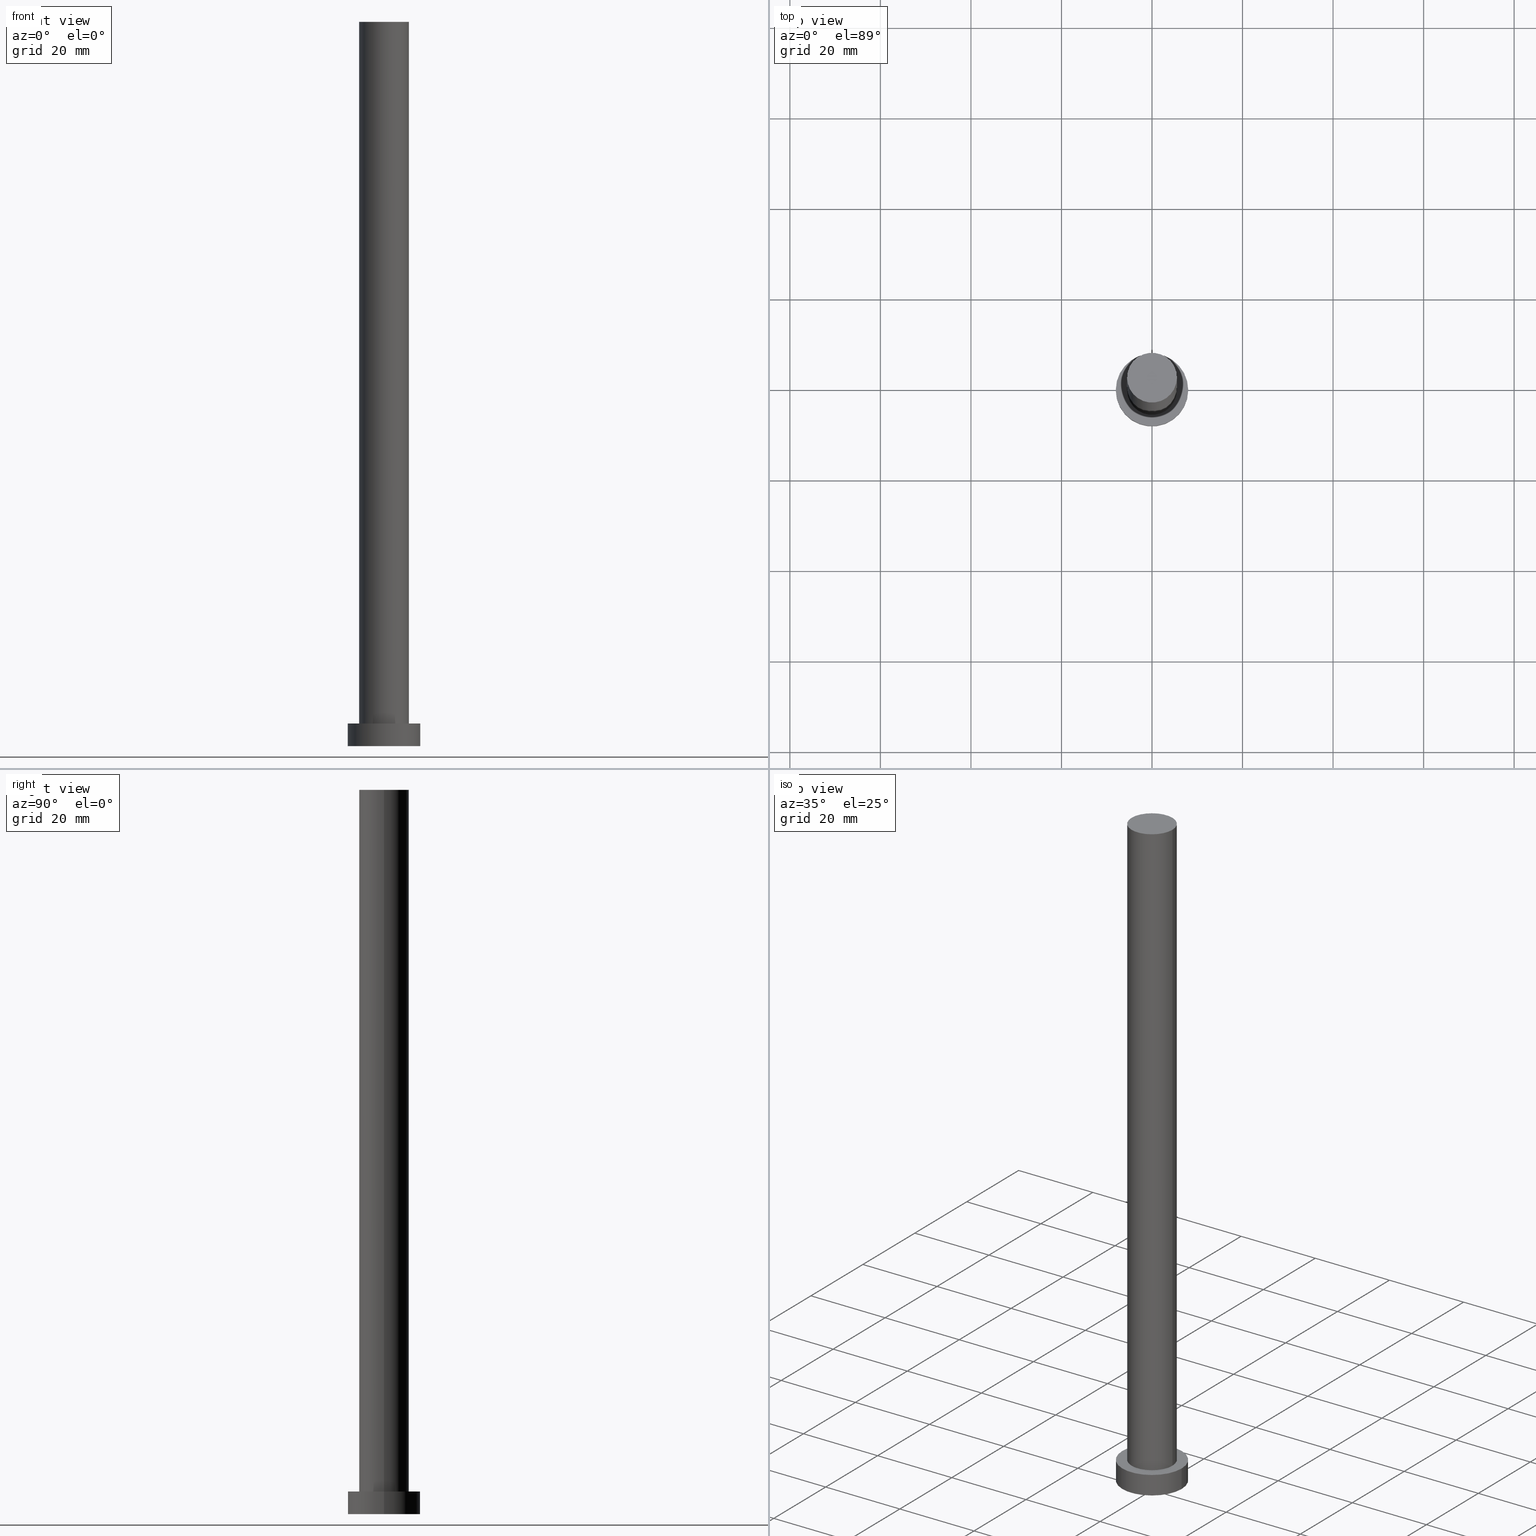
[diagram: canonical four-view strip — front | top / right | iso, engineering-drawing reading convention]
A machine part, canonical four-view strip (front | top / right | iso — engineering-drawing reading convention). The complete STEP part file that produces these views, byte-faithful:
ISO-10303-21;
HEADER;
FILE_DESCRIPTION (( 'STEP AP203' ),
    '1' );
FILE_NAME ('cc7d.STEP',
    '2023-02-12T10:57:39',
    ( '' ),
    ( '' ),
    'SwSTEP 2.0',
    'SolidWorks 2019',
    '' );
FILE_SCHEMA (( 'CONFIG_CONTROL_DESIGN' ));
ENDSEC;

DATA;
#1 = COORDINATED_UNIVERSAL_TIME_OFFSET ( 1, 0, .AHEAD. ) ;
#2 = FACE_OUTER_BOUND ( 'NONE', #150, .T. ) ;
#3 = CARTESIAN_POINT ( 'NONE',  ( 0.000000000000000000, 0.000000000000000000, 0.000000000000000000 ) ) ;
#4 = CARTESIAN_POINT ( 'NONE',  ( 0.000000000000000000, 0.000000000000000000, 0.000000000000000000 ) ) ;
#5 = CARTESIAN_POINT ( 'NONE',  ( -8.000000000000000000, 0.000000000000000000, 5.000000000000000000 ) ) ;
#6 = PERSON_AND_ORGANIZATION_ROLE ( 'design_owner' ) ;
#7 = LINE ( 'NONE', #164, #197 ) ;
#8 = CALENDAR_DATE ( 2023, 12, 2 ) ;
#9 = AXIS2_PLACEMENT_3D ( 'NONE', #4, #240, #99 ) ;
#10 = ADVANCED_FACE ( 'NONE', ( #123 ), #98, .T. ) ;
#11 = DATE_AND_TIME ( #72, #146 ) ;
#12 = ORIENTED_EDGE ( 'NONE', *, *, #176, .T. ) ;
#13 = APPROVAL_DATE_TIME ( #11, #188 ) ;
#14 = CARTESIAN_POINT ( 'NONE',  ( 0.000000000000000000, 0.000000000000000000, 0.000000000000000000 ) ) ;
#15 = ORIENTED_EDGE ( 'NONE', *, *, #50, .F. ) ;
#16 = DIRECTION ( 'NONE',  ( -0.000000000000000000, -0.000000000000000000, -1.000000000000000000 ) ) ;
#17 = VERTEX_POINT ( 'NONE', #5 ) ;
#18 = EDGE_CURVE ( 'NONE', #116, #163, #47, .T. ) ;
#19 = LINE ( 'NONE', #195, #94 ) ;
#20 = APPROVAL_PERSON_ORGANIZATION ( #28, #148, #119 ) ;
#21 = ORIENTED_EDGE ( 'NONE', *, *, #239, .T. ) ;
#22 = DIRECTION ( 'NONE',  ( 0.000000000000000000, 0.000000000000000000, 1.000000000000000000 ) ) ;
#23 = COORDINATED_UNIVERSAL_TIME_OFFSET ( 1, 0, .AHEAD. ) ;
#24 = CLOSED_SHELL ( 'NONE', ( #10, #128, #155, #66, #108, #90, #167 ) ) ;
#25 = APPROVAL ( #82, 'NEUR�EN�' ) ;
#26 = DIRECTION ( 'NONE',  ( 0.000000000000000000, 0.000000000000000000, 1.000000000000000000 ) ) ;
#27 = PERSON_AND_ORGANIZATION ( #187, #168 ) ;
#28 = PERSON_AND_ORGANIZATION ( #187, #168 ) ;
#29 = PERSON_AND_ORGANIZATION ( #187, #168 ) ;
#30 = ORIENTED_EDGE ( 'NONE', *, *, #134, .T. ) ;
#31 = ORIENTED_EDGE ( 'NONE', *, *, #37, .F. ) ;
#32 = AXIS2_PLACEMENT_3D ( 'NONE', #46, #127, #243 ) ;
#33 = PRODUCT_DEFINITION_FORMATION_WITH_SPECIFIED_SOURCE ( 'LIBOVOLN�', '', #122, .NOT_KNOWN. ) ;
#34 = CC_DESIGN_DATE_AND_TIME_ASSIGNMENT ( #85, #228, ( #191 ) ) ;
#35 = DIRECTION ( 'NONE',  ( 1.000000000000000000, 0.000000000000000000, 0.000000000000000000 ) ) ;
#36 = AXIS2_PLACEMENT_3D ( 'NONE', #226, #142, #158 ) ;
#37 = EDGE_CURVE ( 'NONE', #17, #71, #112, .T. ) ;
#38 = CARTESIAN_POINT ( 'NONE',  ( 8.000000000000000000, 9.797174393178825657E-16, 0.000000000000000000 ) ) ;
#39 = DIRECTION ( 'NONE',  ( -0.000000000000000000, -0.000000000000000000, -1.000000000000000000 ) ) ;
#40 = CARTESIAN_POINT ( 'NONE',  ( 0.000000000000000000, 0.000000000000000000, 5.000000000000000000 ) ) ;
#41 = APPLICATION_PROTOCOL_DEFINITION ( 'international standard', 'config_control_design', 1994, #166 ) ;
#42 = CARTESIAN_POINT ( 'NONE',  ( -5.500000000000000000, 0.000000000000000000, 160.0000000000000000 ) ) ;
#43 = DATE_AND_TIME ( #8, #57 ) ;
#44 = EDGE_CURVE ( 'NONE', #153, #234, #68, .T. ) ;
#45 = CALENDAR_DATE ( 2023, 12, 2 ) ;
#46 = CARTESIAN_POINT ( 'NONE',  ( 0.000000000000000000, 0.000000000000000000, 160.0000000000000000 ) ) ;
#47 = CIRCLE ( 'NONE', #143, 8.000000000000000000 ) ;
#48 = VERTEX_POINT ( 'NONE', #206 ) ;
#49 = AXIS2_PLACEMENT_3D ( 'NONE', #103, #39, #179 ) ;
#50 = EDGE_CURVE ( 'NONE', #234, #48, #241, .T. ) ;
#51 = DIRECTION ( 'NONE',  ( 1.000000000000000000, 0.000000000000000000, -0.000000000000000000 ) ) ;
#52 = CARTESIAN_POINT ( 'NONE',  ( 0.000000000000000000, 0.000000000000000000, 160.0000000000000000 ) ) ;
#53 = ORIENTED_EDGE ( 'NONE', *, *, #37, .T. ) ;
#54 = EDGE_LOOP ( 'NONE', ( #129, #110 ) ) ;
#55 = CYLINDRICAL_SURFACE ( 'NONE', #64, 5.500000000000000000 ) ;
#56 = APPROVAL_STATUS ( 'not_yet_approved' ) ;
#57 = LOCAL_TIME ( 11, 57, 39.00000000000000000, #245 ) ;
#58 = APPROVAL_DATE_TIME ( #43, #25 ) ;
#59 = EDGE_CURVE ( 'NONE', #17, #116, #7, .T. ) ;
#60 = CARTESIAN_POINT ( 'NONE',  ( 0.000000000000000000, 0.000000000000000000, 0.000000000000000000 ) ) ;
#61 = EDGE_CURVE ( 'NONE', #71, #163, #204, .T. ) ;
#62 = AXIS2_PLACEMENT_3D ( 'NONE', #40, #145, #77 ) ;
#63 = CC_DESIGN_APPROVAL ( #188, ( #191 ) ) ;
#64 = AXIS2_PLACEMENT_3D ( 'NONE', #52, #156, #253 ) ;
#65 = CIRCLE ( 'NONE', #196, 5.500000000000000000 ) ;
#66 = ADVANCED_FACE ( 'NONE', ( #106, #235 ), #154, .T. ) ;
#67 = PERSON_AND_ORGANIZATION_ROLE ( 'classification_officer' ) ;
#68 = CIRCLE ( 'NONE', #32, 5.500000000000000000 ) ;
#69 = FACE_OUTER_BOUND ( 'NONE', #232, .T. ) ;
#70 = DIRECTION ( 'NONE',  ( 0.000000000000000000, 0.000000000000000000, 1.000000000000000000 ) ) ;
#71 = VERTEX_POINT ( 'NONE', #193 ) ;
#72 = CALENDAR_DATE ( 2023, 12, 2 ) ;
#73 = DESIGN_CONTEXT ( 'detailed design', #201, 'design' ) ;
#74 = AXIS2_PLACEMENT_3D ( 'NONE', #3, #162, #242 ) ;
#75 = ADVANCED_BREP_SHAPE_REPRESENTATION ( 'cc7d', ( #203, #9 ), #136 ) ;
#76 = CYLINDRICAL_SURFACE ( 'NONE', #107, 8.000000000000000000 ) ;
#77 = DIRECTION ( 'NONE',  ( 1.000000000000000000, 0.000000000000000000, 0.000000000000000000 ) ) ;
#78 = CC_DESIGN_PERSON_AND_ORGANIZATION_ASSIGNMENT ( #86, #130, ( #33 ) ) ;
#79 = DIRECTION ( 'NONE',  ( 1.000000000000000000, 0.000000000000000000, 0.000000000000000000 ) ) ;
#80 = APPROVAL_DATE_TIME ( #175, #148 ) ;
#81 = PRODUCT_DEFINITION_SHAPE ( 'NONE', 'NONE',  #210 ) ;
#82 = APPROVAL_STATUS ( 'not_yet_approved' ) ;
#83 = AXIS2_PLACEMENT_3D ( 'NONE', #135, #141, #222 ) ;
#84 = AXIS2_PLACEMENT_3D ( 'NONE', #111, #113, #172 ) ;
#85 = DATE_AND_TIME ( #185, #220 ) ;
#86 = PERSON_AND_ORGANIZATION ( #187, #168 ) ;
#87 = ORIENTED_EDGE ( 'NONE', *, *, #149, .T. ) ;
#88 = PERSON_AND_ORGANIZATION_ROLE ( 'creator' ) ;
#89 = ORIENTED_EDGE ( 'NONE', *, *, #18, .T. ) ;
#90 = ADVANCED_FACE ( 'NONE', ( #252 ), #55, .T. ) ;
#91 = ORIENTED_EDGE ( 'NONE', *, *, #61, .F. ) ;
#92 = APPROVAL_ROLE ( '' ) ;
#93 = CARTESIAN_POINT ( 'NONE',  ( 0.000000000000000000, 0.000000000000000000, 5.000000000000000000 ) ) ;
#94 = VECTOR ( 'NONE', #174, 1000.000000000000000 ) ;
#95 = CYLINDRICAL_SURFACE ( 'NONE', #184, 8.000000000000000000 ) ;
#96 = CARTESIAN_POINT ( 'NONE',  ( 0.000000000000000000, 0.000000000000000000, 160.0000000000000000 ) ) ;
#97 = CALENDAR_DATE ( 2023, 12, 2 ) ;
#98 = CYLINDRICAL_SURFACE ( 'NONE', #49, 5.500000000000000000 ) ;
#99 = DIRECTION ( 'NONE',  ( 1.000000000000000000, 0.000000000000000000, 0.000000000000000000 ) ) ;
#100 = CC_DESIGN_PERSON_AND_ORGANIZATION_ASSIGNMENT ( #125, #181, ( #210 ) ) ;
#101 = ORIENTED_EDGE ( 'NONE', *, *, #50, .T. ) ;
#102 = PERSON_AND_ORGANIZATION ( #187, #168 ) ;
#103 = CARTESIAN_POINT ( 'NONE',  ( 0.000000000000000000, 0.000000000000000000, 160.0000000000000000 ) ) ;
#104 = CARTESIAN_POINT ( 'NONE',  ( 8.000000000000000000, 9.797174393178825657E-16, 5.000000000000000000 ) ) ;
#105 = COORDINATED_UNIVERSAL_TIME_OFFSET ( 1, 0, .AHEAD. ) ;
#106 = FACE_BOUND ( 'NONE', #186, .T. ) ;
#107 = AXIS2_PLACEMENT_3D ( 'NONE', #238, #16, #138 ) ;
#108 = ADVANCED_FACE ( 'NONE', ( #194 ), #190, .F. ) ;
#109 = LOCAL_TIME ( 11, 57, 39.00000000000000000, #199 ) ;
#110 = ORIENTED_EDGE ( 'NONE', *, *, #244, .F. ) ;
#111 = CARTESIAN_POINT ( 'NONE',  ( 0.000000000000000000, 0.000000000000000000, 5.000000000000000000 ) ) ;
#112 = CIRCLE ( 'NONE', #36, 8.000000000000000000 ) ;
#113 = DIRECTION ( 'NONE',  ( 0.000000000000000000, 0.000000000000000000, 1.000000000000000000 ) ) ;
#114 = CARTESIAN_POINT ( 'NONE',  ( -8.000000000000000000, 0.000000000000000000, 0.000000000000000000 ) ) ;
#115 = DIRECTION ( 'NONE',  ( 1.000000000000000000, 0.000000000000000000, 0.000000000000000000 ) ) ;
#116 = VERTEX_POINT ( 'NONE', #114 ) ;
#117 = CC_DESIGN_PERSON_AND_ORGANIZATION_ASSIGNMENT ( #102, #6, ( #122 ) ) ;
#118 = FACE_OUTER_BOUND ( 'NONE', #229, .T. ) ;
#119 = APPROVAL_ROLE ( '' ) ;
#120 =( LENGTH_UNIT ( ) NAMED_UNIT ( * ) SI_UNIT ( .MILLI., .METRE. ) );
#121 = CC_DESIGN_PERSON_AND_ORGANIZATION_ASSIGNMENT ( #161, #88, ( #33 ) ) ;
#122 = PRODUCT ( 'cc7d', 'cc7d', '', ( #124 ) ) ;
#123 = FACE_OUTER_BOUND ( 'NONE', #248, .T. ) ;
#124 = MECHANICAL_CONTEXT ( 'NONE', #166, 'mechanical' ) ;
#125 = PERSON_AND_ORGANIZATION ( #187, #168 ) ;
#126 = DATE_AND_TIME ( #45, #160 ) ;
#127 = DIRECTION ( 'NONE',  ( 0.000000000000000000, 0.000000000000000000, 1.000000000000000000 ) ) ;
#128 = ADVANCED_FACE ( 'NONE', ( #69 ), #95, .T. ) ;
#129 = ORIENTED_EDGE ( 'NONE', *, *, #18, .F. ) ;
#130 = PERSON_AND_ORGANIZATION_ROLE ( 'design_supplier' ) ;
#131 = ORIENTED_EDGE ( 'NONE', *, *, #44, .T. ) ;
#132 = CARTESIAN_POINT ( 'NONE',  ( 0.000000000000000000, 0.000000000000000000, 160.0000000000000000 ) ) ;
#133 = ORIENTED_EDGE ( 'NONE', *, *, #134, .F. ) ;
#134 = EDGE_CURVE ( 'NONE', #71, #17, #177, .T. ) ;
#135 = CARTESIAN_POINT ( 'NONE',  ( 0.000000000000000000, 0.000000000000000000, 5.000000000000000000 ) ) ;
#136 =( GEOMETRIC_REPRESENTATION_CONTEXT ( 3 ) GLOBAL_UNCERTAINTY_ASSIGNED_CONTEXT ( ( #227 ) ) GLOBAL_UNIT_ASSIGNED_CONTEXT ( ( #120, #200, #223 ) ) REPRESENTATION_CONTEXT ( 'NONE', 'WORKASPACE' ) );
#137 = CARTESIAN_POINT ( 'NONE',  ( 0.000000000000000000, 0.000000000000000000, 5.000000000000000000 ) ) ;
#138 = DIRECTION ( 'NONE',  ( -1.000000000000000000, 0.000000000000000000, 0.000000000000000000 ) ) ;
#139 = AXIS2_PLACEMENT_3D ( 'NONE', #96, #22, #51 ) ;
#140 = APPLICATION_PROTOCOL_DEFINITION ( 'international standard', 'config_control_design', 1994, #201 ) ;
#141 = DIRECTION ( 'NONE',  ( 0.000000000000000000, 0.000000000000000000, 1.000000000000000000 ) ) ;
#142 = DIRECTION ( 'NONE',  ( 0.000000000000000000, 0.000000000000000000, 1.000000000000000000 ) ) ;
#143 = AXIS2_PLACEMENT_3D ( 'NONE', #60, #26, #79 ) ;
#144 = CIRCLE ( 'NONE', #62, 5.500000000000000000 ) ;
#145 = DIRECTION ( 'NONE',  ( 0.000000000000000000, 0.000000000000000000, 1.000000000000000000 ) ) ;
#146 = LOCAL_TIME ( 11, 57, 39.00000000000000000, #1 ) ;
#147 = ORIENTED_EDGE ( 'NONE', *, *, #44, .F. ) ;
#148 = APPROVAL ( #221, 'NEUR�EN�' ) ;
#149 = EDGE_CURVE ( 'NONE', #153, #254, #19, .T. ) ;
#150 = EDGE_LOOP ( 'NONE', ( #91, #31, #217, #89 ) ) ;
#151 = SHAPE_DEFINITION_REPRESENTATION ( #81, #75 ) ;
#152 = DIRECTION ( 'NONE',  ( -1.000000000000000000, 0.000000000000000000, 0.000000000000000000 ) ) ;
#153 = VERTEX_POINT ( 'NONE', #157 ) ;
#154 = PLANE ( 'NONE',  #84 ) ;
#155 = ADVANCED_FACE ( 'NONE', ( #2 ), #76, .T. ) ;
#156 = DIRECTION ( 'NONE',  ( -0.000000000000000000, -0.000000000000000000, -1.000000000000000000 ) ) ;
#157 = CARTESIAN_POINT ( 'NONE',  ( 5.500000000000000000, 6.735557395310442023E-16, 160.0000000000000000 ) ) ;
#158 = DIRECTION ( 'NONE',  ( 1.000000000000000000, 0.000000000000000000, 0.000000000000000000 ) ) ;
#159 = VECTOR ( 'NONE', #182, 1000.000000000000000 ) ;
#160 = LOCAL_TIME ( 11, 57, 39.00000000000000000, #23 ) ;
#161 = PERSON_AND_ORGANIZATION ( #187, #168 ) ;
#162 = DIRECTION ( 'NONE',  ( 0.000000000000000000, 0.000000000000000000, 1.000000000000000000 ) ) ;
#163 = VERTEX_POINT ( 'NONE', #38 ) ;
#164 = CARTESIAN_POINT ( 'NONE',  ( -8.000000000000000000, 0.000000000000000000, 5.000000000000000000 ) ) ;
#165 = CC_DESIGN_DATE_AND_TIME_ASSIGNMENT ( #126, #205, ( #210 ) ) ;
#166 = APPLICATION_CONTEXT ( 'configuration controlled 3d designs of mechanical parts and assemblies' ) ;
#167 = ADVANCED_FACE ( 'NONE', ( #118 ), #170, .T. ) ;
#168 = ORGANIZATION ( 'NEUR�EN�', 'NEUR�EN�', '' ) ;
#169 = ORIENTED_EDGE ( 'NONE', *, *, #176, .F. ) ;
#170 = PLANE ( 'NONE',  #139 ) ;
#171 = EDGE_LOOP ( 'NONE', ( #53, #30 ) ) ;
#172 = DIRECTION ( 'NONE',  ( 1.000000000000000000, 0.000000000000000000, -0.000000000000000000 ) ) ;
#173 = APPROVAL_PERSON_ORGANIZATION ( #29, #188, #92 ) ;
#174 = DIRECTION ( 'NONE',  ( -0.000000000000000000, -0.000000000000000000, -1.000000000000000000 ) ) ;
#175 = DATE_AND_TIME ( #97, #109 ) ;
#176 = EDGE_CURVE ( 'NONE', #234, #153, #65, .T. ) ;
#177 = CIRCLE ( 'NONE', #236, 8.000000000000000000 ) ;
#178 = CC_DESIGN_APPROVAL ( #148, ( #33 ) ) ;
#179 = DIRECTION ( 'NONE',  ( -1.000000000000000000, 0.000000000000000000, 0.000000000000000000 ) ) ;
#180 = CARTESIAN_POINT ( 'NONE',  ( 5.500000000000000000, 6.735557395310442023E-16, 5.000000000000000000 ) ) ;
#181 = PERSON_AND_ORGANIZATION_ROLE ( 'creator' ) ;
#182 = DIRECTION ( 'NONE',  ( -0.000000000000000000, -0.000000000000000000, -1.000000000000000000 ) ) ;
#183 = APPROVAL_PERSON_ORGANIZATION ( #27, #25, #225 ) ;
#184 = AXIS2_PLACEMENT_3D ( 'NONE', #93, #237, #152 ) ;
#185 = CALENDAR_DATE ( 2023, 12, 2 ) ;
#186 = EDGE_LOOP ( 'NONE', ( #215, #212 ) ) ;
#187 = PERSON ( 'NEUR�EN�', 'NEUR�EN�', 'NEUR�EN�', ('NEUR�EN�'), ('NEUR�EN�'), ('NEUR�EN�') ) ;
#188 = APPROVAL ( #56, 'NEUR�EN�' ) ;
#189 = ORIENTED_EDGE ( 'NONE', *, *, #149, .F. ) ;
#190 = PLANE ( 'NONE',  #230 ) ;
#191 = SECURITY_CLASSIFICATION ( '', '', #211 ) ;
#192 = EDGE_LOOP ( 'NONE', ( #189, #169, #101, #247 ) ) ;
#193 = CARTESIAN_POINT ( 'NONE',  ( 8.000000000000000000, 9.797174393178825657E-16, 5.000000000000000000 ) ) ;
#194 = FACE_OUTER_BOUND ( 'NONE', #54, .T. ) ;
#195 = CARTESIAN_POINT ( 'NONE',  ( 5.500000000000000000, 6.735557395310442023E-16, 160.0000000000000000 ) ) ;
#196 = AXIS2_PLACEMENT_3D ( 'NONE', #132, #213, #35 ) ;
#197 = VECTOR ( 'NONE', #224, 1000.000000000000000 ) ;
#198 = PRODUCT_RELATED_PRODUCT_CATEGORY ( 'detail', '', ( #122 ) ) ;
#199 = COORDINATED_UNIVERSAL_TIME_OFFSET ( 1, 0, .AHEAD. ) ;
#200 =( NAMED_UNIT ( * ) PLANE_ANGLE_UNIT ( ) SI_UNIT ( $, .RADIAN. ) );
#201 = APPLICATION_CONTEXT ( 'configuration controlled 3d designs of mechanical parts and assemblies' ) ;
#202 = DIRECTION ( 'NONE',  ( -0.000000000000000000, -0.000000000000000000, -1.000000000000000000 ) ) ;
#203 = MANIFOLD_SOLID_BREP ( 'P�idat vysunut�m3', #24 ) ;
#204 = LINE ( 'NONE', #104, #159 ) ;
#205 = DATE_TIME_ROLE ( 'creation_date' ) ;
#206 = CARTESIAN_POINT ( 'NONE',  ( -5.500000000000000000, 0.000000000000000000, 5.000000000000000000 ) ) ;
#207 = CC_DESIGN_APPROVAL ( #25, ( #210 ) ) ;
#208 = PERSON_AND_ORGANIZATION ( #187, #168 ) ;
#209 = VECTOR ( 'NONE', #202, 1000.000000000000000 ) ;
#210 = PRODUCT_DEFINITION ( 'NEZN�M�', '', #33, #73 ) ;
#211 = SECURITY_CLASSIFICATION_LEVEL ( 'unclassified' ) ;
#212 = ORIENTED_EDGE ( 'NONE', *, *, #239, .F. ) ;
#213 = DIRECTION ( 'NONE',  ( 0.000000000000000000, 0.000000000000000000, 1.000000000000000000 ) ) ;
#214 = CIRCLE ( 'NONE', #83, 5.500000000000000000 ) ;
#215 = ORIENTED_EDGE ( 'NONE', *, *, #249, .F. ) ;
#216 = DIRECTION ( 'NONE',  ( 1.000000000000000000, 0.000000000000000000, -0.000000000000000000 ) ) ;
#217 = ORIENTED_EDGE ( 'NONE', *, *, #59, .T. ) ;
#218 = DIRECTION ( 'NONE',  ( 0.000000000000000000, 0.000000000000000000, 1.000000000000000000 ) ) ;
#219 = ORIENTED_EDGE ( 'NONE', *, *, #61, .T. ) ;
#220 = LOCAL_TIME ( 11, 57, 39.00000000000000000, #105 ) ;
#221 = APPROVAL_STATUS ( 'not_yet_approved' ) ;
#222 = DIRECTION ( 'NONE',  ( 1.000000000000000000, 0.000000000000000000, 0.000000000000000000 ) ) ;
#223 =( NAMED_UNIT ( * ) SI_UNIT ( $, .STERADIAN. ) SOLID_ANGLE_UNIT ( ) );
#224 = DIRECTION ( 'NONE',  ( -0.000000000000000000, -0.000000000000000000, -1.000000000000000000 ) ) ;
#225 = APPROVAL_ROLE ( '' ) ;
#226 = CARTESIAN_POINT ( 'NONE',  ( 0.000000000000000000, 0.000000000000000000, 5.000000000000000000 ) ) ;
#227 = UNCERTAINTY_MEASURE_WITH_UNIT (LENGTH_MEASURE( 1.000000000000000082E-05 ), #120, 'distance_accuracy_value', 'NONE');
#228 = DATE_TIME_ROLE ( 'classification_date' ) ;
#229 = EDGE_LOOP ( 'NONE', ( #12, #131 ) ) ;
#230 = AXIS2_PLACEMENT_3D ( 'NONE', #14, #70, #216 ) ;
#231 = CC_DESIGN_SECURITY_CLASSIFICATION ( #191, ( #33 ) ) ;
#232 = EDGE_LOOP ( 'NONE', ( #133, #219, #250, #255 ) ) ;
#233 = CARTESIAN_POINT ( 'NONE',  ( -5.500000000000000000, 0.000000000000000000, 160.0000000000000000 ) ) ;
#234 = VERTEX_POINT ( 'NONE', #233 ) ;
#235 = FACE_OUTER_BOUND ( 'NONE', #171, .T. ) ;
#236 = AXIS2_PLACEMENT_3D ( 'NONE', #137, #218, #115 ) ;
#237 = DIRECTION ( 'NONE',  ( -0.000000000000000000, -0.000000000000000000, -1.000000000000000000 ) ) ;
#238 = CARTESIAN_POINT ( 'NONE',  ( 0.000000000000000000, 0.000000000000000000, 5.000000000000000000 ) ) ;
#239 = EDGE_CURVE ( 'NONE', #254, #48, #214, .T. ) ;
#240 = DIRECTION ( 'NONE',  ( 0.000000000000000000, 0.000000000000000000, 1.000000000000000000 ) ) ;
#241 = LINE ( 'NONE', #42, #209 ) ;
#242 = DIRECTION ( 'NONE',  ( 1.000000000000000000, 0.000000000000000000, 0.000000000000000000 ) ) ;
#243 = DIRECTION ( 'NONE',  ( 1.000000000000000000, 0.000000000000000000, 0.000000000000000000 ) ) ;
#244 = EDGE_CURVE ( 'NONE', #163, #116, #251, .T. ) ;
#245 = COORDINATED_UNIVERSAL_TIME_OFFSET ( 1, 0, .AHEAD. ) ;
#246 = CC_DESIGN_PERSON_AND_ORGANIZATION_ASSIGNMENT ( #208, #67, ( #191 ) ) ;
#247 = ORIENTED_EDGE ( 'NONE', *, *, #249, .T. ) ;
#248 = EDGE_LOOP ( 'NONE', ( #147, #87, #21, #15 ) ) ;
#249 = EDGE_CURVE ( 'NONE', #48, #254, #144, .T. ) ;
#250 = ORIENTED_EDGE ( 'NONE', *, *, #244, .T. ) ;
#251 = CIRCLE ( 'NONE', #74, 8.000000000000000000 ) ;
#252 = FACE_OUTER_BOUND ( 'NONE', #192, .T. ) ;
#253 = DIRECTION ( 'NONE',  ( -1.000000000000000000, 0.000000000000000000, 0.000000000000000000 ) ) ;
#254 = VERTEX_POINT ( 'NONE', #180 ) ;
#255 = ORIENTED_EDGE ( 'NONE', *, *, #59, .F. ) ;
ENDSEC;
END-ISO-10303-21;
